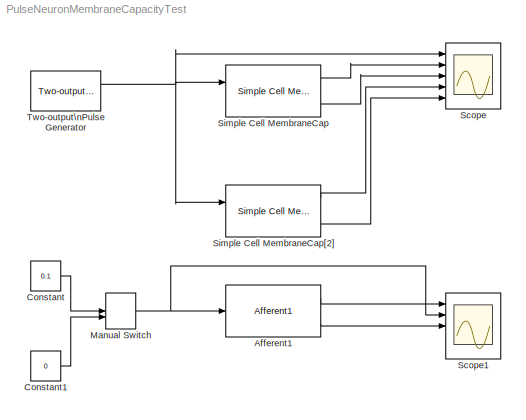
MODEL PulseNeuronMembraneCapacityTest
KIND model
BLOCK [Reference] Afferent1  REF=NeuroModelerLibrary/Simple Cells/Afferent1
  ExpCoeff = 0.001
  IncCoeff = 0.999
  NameLocation = top
  Ports = [1, 3]
  RTWMemSecDataConstants = Inherit from model
  RTWMemSecDataInternal = Inherit from model
  RTWMemSecDataParameters = Inherit from model
  RTWMemSecFuncExecute = Inherit from model
  RTWMemSecFuncInitTerm = Inherit from model
  SID = 8
  SourceBlock = NeuroModelerLibrary/Simple Cells/Afferent1
BLOCK [Constant] Constant
  SID = 10
  Value = 0.1
BLOCK [Constant] Constant1
  SID = 12
  Value = 0
BLOCK [ManualSwitch] Manual Switch
  CurrentSetting = 0
  SID = 11
BLOCK [Scope] Scope
  Floating = off
  NumInputPorts = 5
  Ports = [5]
  SID = 4
  ScopeSpecificationString = Simulink.scopes.TimeScopeBlockCfg('CurrentConfiguration', extmgr.ConfigurationSet(extmgr.Configuration('Core','General UI',true),extmgr.Configuration('Core','Source UI',true),extmgr.Configuration('Sources','WiredSimulink',true,'DataLoggingSaveFormat','StructureWithTime','DataLoggingMaxPoints','500000','DataLoggingLimitDataPoints',true,'DataLoggingDecimation','1','DataLoggingDecimateData',true),ext...<+4486ch>
BLOCK [Scope] Scope1
  Floating = off
  NumInputPorts = 5
  Ports = [5]
  SID = 9
  ScopeSpecificationString = C++SS(StrPVP('Location','[106, 285, 1321, 873]'),StrPVP('Open','off'),StrPVP('ZoomMode','xonly'),MxPVP('AxesTitles',54,'struct(''axes1'',''%<SignalLabel>'',''axes2'',''%<SignalLabel>'',''axes3'',''%<SignalLabel>'',''axes4'',''%<SignalLabel>'',''axes5'',''%<SignalLabel>'')'),StrPVP('YMin','-1~-1~-1~-1~-1'),StrPVP('YMax','1~1~0~1~1'),StrPVP('SaveName','ScopeData2'),StrPVP('DataFormat','StructureWith...<+169ch>
BLOCK [Reference] Simple Cell MembraneCap  REF=NeuroModelerLibrary/Simple Cells/Simple Cell MembraneCap
  AllowZeroVariantControls = off
  AutoFrameSizeCalculation = off
  Latency = 0
  NameLocation = top
  Ports = [2, 3]
  PropagateVariantConditions = off
  RTWMemSecDataConstants = Inherit from model
  RTWMemSecDataInternal = Inherit from model
  RTWMemSecDataParameters = Inherit from model
  RTWMemSecFuncExecute = Inherit from model
  RTWMemSecFuncInitTerm = Inherit from model
  SID = 29
  ShowPortLabels = FromPortIcon
  SourceBlock = NeuroModelerLibrary/Simple Cells/Simple Cell MembraneCap
  SourceType = SubSystem
  SystemSampleTime = -1
  VariantActivationTime = update diagram
BLOCK [Reference] Simple Cell MembraneCap[2]  REF=NeuroModelerLibrary/Simple Cells/Simple Cell MembraneCap[2]
  AllowZeroVariantControls = off
  AutoFrameSizeCalculation = off
  Latency = 0
  NameLocation = top
  Ports = [2, 3]
  PropagateVariantConditions = off
  RTWMemSecDataConstants = Inherit from model
  RTWMemSecDataInternal = Inherit from model
  RTWMemSecDataParameters = Inherit from model
  RTWMemSecFuncExecute = Inherit from model
  RTWMemSecFuncInitTerm = Inherit from model
  SID = 47
  ShowPortLabels = FromPortIcon
  SourceBlock = NeuroModelerLibrary/Simple Cells/Simple Cell MembraneCap[2]
  SourceType = SubSystem
  SystemSampleTime = -1
  VariantActivationTime = update diagram
BLOCK [Reference] Two-output\nPulse Generator  REF=NeuroModelerLibrary/Support/Two-output\nPulse Generator
  A = 1
  OOff1 = 7
  OOff2 = 1.2
  OOn1 = 5
  OOn2 = 1.1
  P1 = 300
  P2 = 200
  PW = 1
  Ports = [0, 2]
  RTWMemSecDataConstants = Inherit from model
  RTWMemSecDataInternal = Inherit from model
  RTWMemSecDataParameters = Inherit from model
  RTWMemSecFuncExecute = Inherit from model
  RTWMemSecFuncInitTerm = Inherit from model
  SID = 1
  ST = 0.001
  SourceBlock = NeuroModelerLibrary/Support/Two-output\nPulse Generator
LINE Afferent1:1 -> Scope1:1
LINE Afferent1:3 -> Scope1:3
LINE Constant1:1 -> Manual Switch:2
LINE Constant:1 -> Manual Switch:1
NET Manual Switch:1 -> Afferent1:1, Scope1:2
LINE Simple Cell MembraneCap:1 -> Scope:2
LINE Simple Cell MembraneCap:3 -> Scope:3
LINE Simple Cell MembraneCap[2]:1 -> Scope:4
LINE Simple Cell MembraneCap[2]:3 -> Scope:5
NET Two-output\nPulse Generator:1 -> Scope:1, Simple Cell MembraneCap:1, Simple Cell MembraneCap[2]:1
note: NET lines group one-source signal fan-out (src -> all destinations, sorted); 1:1 wires keep LINE
